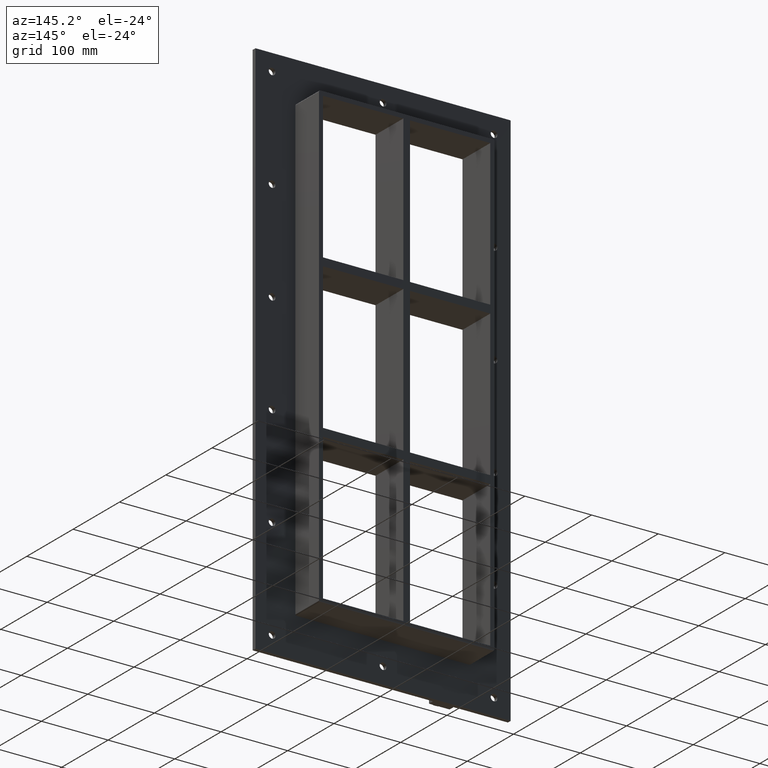
[diagram: clean part render]
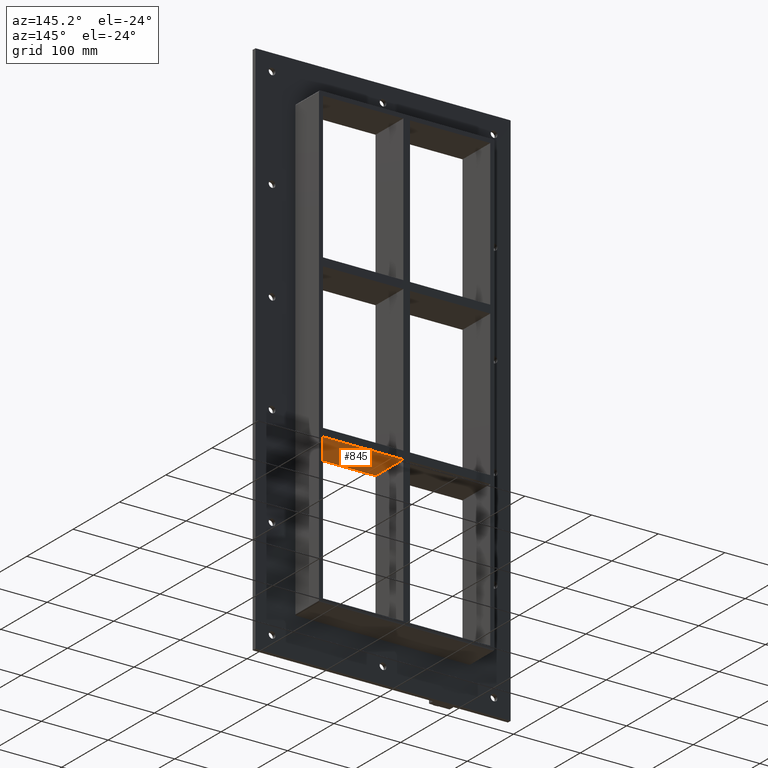
[diagram: same view with one face highlighted and labeled with its STEP entity id]
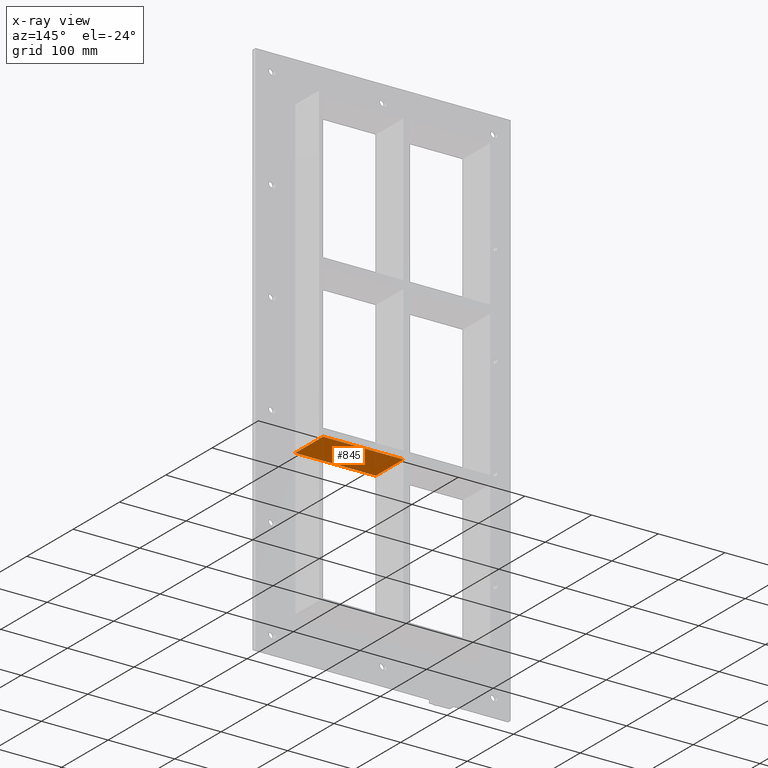
[diagram: x-ray of the same camera — body ghosted, the highlighted face saturated]
A machine part, auxiliary view. The second image highlights one B-rep face of the part: STEP entity #845.
The next image is the same camera in x-ray: the body ghosted, the highlighted face saturated — about 0% of this face is hidden behind the body in this view.
In plain terms, the highlighted planar face has unit normal (0, 0, -1).
Its self-contained STEP definition (entity closure, byte-faithful):
#806=CARTESIAN_POINT('',(125.49999999999272,-3.0,-121.00000000001101));
#807=DIRECTION('',(0.0,0.0,-1.0));
#808=DIRECTION('',(-1.0,0.0,0.0));
#809=AXIS2_PLACEMENT_3D('',#806,#807,#808);
#810=PLANE('',#809);
#811=CARTESIAN_POINT('',(5.0,57.0,-121.0000000000113));
#812=VERTEX_POINT('',#811);
#813=CARTESIAN_POINT('',(5.0,-3.0,-121.0000000000113));
#814=VERTEX_POINT('',#813);
#815=CARTESIAN_POINT('',(5.0,57.0,-121.00000000001131));
#816=DIRECTION('',(0.0,-1.0,0.0));
#817=VECTOR('',#816,60.0);
#818=LINE('',#815,#817);
#819=EDGE_CURVE('',#812,#814,#818,.T.);
#820=ORIENTED_EDGE('',*,*,#819,.F.);
#821=CARTESIAN_POINT('',(125.49999999999274,57.0,-121.00000000001101));
#822=VERTEX_POINT('',#821);
#823=CARTESIAN_POINT('',(125.49999999999272,57.0,-121.00000000001101));
#824=DIRECTION('',(-1.0,0.0,0.0));
#825=VECTOR('',#824,120.49999999999272);
#826=LINE('',#823,#825);
#827=EDGE_CURVE('',#822,#812,#826,.T.);
#828=ORIENTED_EDGE('',*,*,#827,.F.);
#829=CARTESIAN_POINT('',(125.49999999999272,-3.0,-121.00000000001101));
#830=VERTEX_POINT('',#829);
#831=CARTESIAN_POINT('',(125.5,-3.0,-121.00000000001103));
#832=DIRECTION('',(0.0,1.0,0.0));
#833=VECTOR('',#832,60.000000000000007);
#834=LINE('',#831,#833);
#835=EDGE_CURVE('',#830,#822,#834,.T.);
#836=ORIENTED_EDGE('',*,*,#835,.F.);
#837=CARTESIAN_POINT('',(125.49999999999272,-3.0,-121.00000000001101));
#838=DIRECTION('',(-1.0,0.0,0.0));
#839=VECTOR('',#838,120.49999999999272);
#840=LINE('',#837,#839);
#841=EDGE_CURVE('',#830,#814,#840,.T.);
#842=ORIENTED_EDGE('',*,*,#841,.T.);
#843=EDGE_LOOP('',(#820,#828,#836,#842));
#844=FACE_OUTER_BOUND('',#843,.T.);
#845=ADVANCED_FACE('',(#844),#810,.T.);